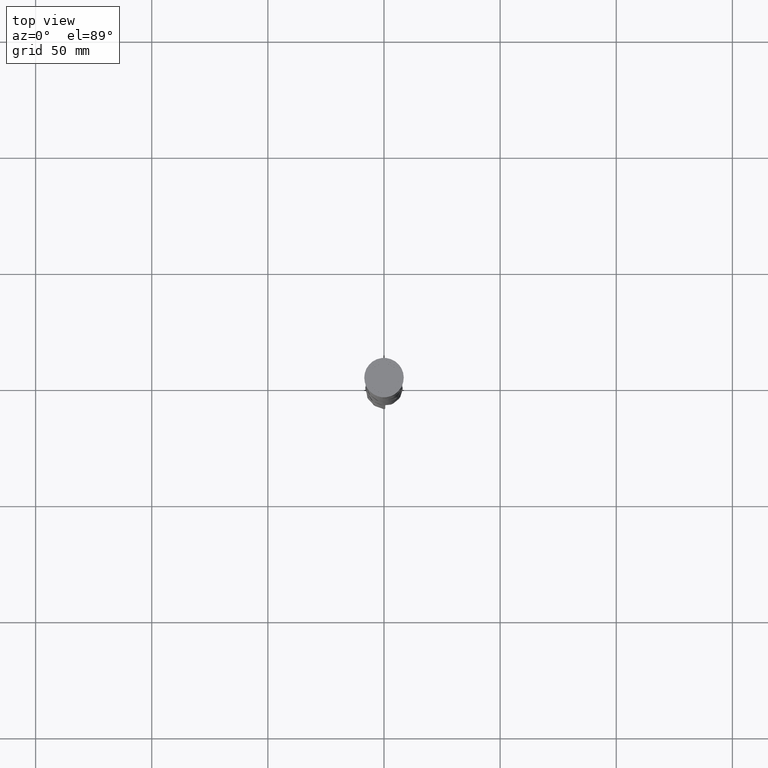
[diagram: clean part render]
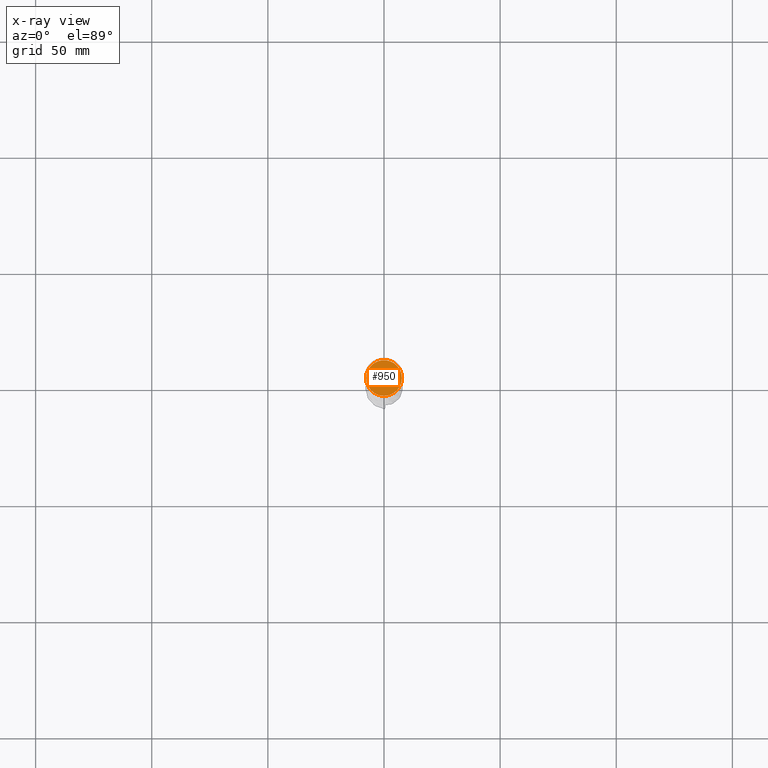
[diagram: x-ray — body ghosted, one internal face saturated and labeled with its STEP entity id]
A machine part, top view, then the same camera in x-ray: the body is ghosted and one INTERNAL B-rep face — a face not visible from any outside direction — is saturated and labeled: STEP entity #950.
In plain terms, the highlighted planar face has unit normal (0, 0, -1).
Its self-contained STEP definition (entity closure, byte-faithful):
#681 = CIRCLE ( 'NONE', #3809, 7.700000000000001954 ) ;
#836 = CARTESIAN_POINT ( 'NONE',  ( 0.000000000000000000, 0.000000000000000000, -12.00000000000000000 ) ) ;
#950 = ADVANCED_FACE ( 'NONE', ( #1639 ), #2623, .F. ) ;
#1072 = CIRCLE ( 'NONE', #2279, 7.700000000000001954 ) ;
#1192 = DIRECTION ( 'NONE',  ( -1.000000000000000000, 0.000000000000000000, 0.000000000000000000 ) ) ;
#1483 = VERTEX_POINT ( 'NONE', #4101 ) ;
#1601 = AXIS2_PLACEMENT_3D ( 'NONE', #2640, #3909, #1621 ) ;
#1621 = DIRECTION ( 'NONE',  ( -1.000000000000000000, 0.000000000000000000, -0.000000000000000000 ) ) ;
#1639 = FACE_OUTER_BOUND ( 'NONE', #3141, .T. ) ;
#1755 = ORIENTED_EDGE ( 'NONE', *, *, #2425, .T. ) ;
#1910 = VERTEX_POINT ( 'NONE', #3384 ) ;
#2114 = DIRECTION ( 'NONE',  ( -1.000000000000000000, 0.000000000000000000, 0.000000000000000000 ) ) ;
#2147 = EDGE_CURVE ( 'NONE', #1910, #1483, #1072, .T. ) ;
#2279 = AXIS2_PLACEMENT_3D ( 'NONE', #2777, #3180, #1192 ) ;
#2425 = EDGE_CURVE ( 'NONE', #1483, #1910, #681, .T. ) ;
#2623 = PLANE ( 'NONE',  #1601 ) ;
#2640 = CARTESIAN_POINT ( 'NONE',  ( 0.000000000000000000, 0.000000000000000000, -12.00000000000000000 ) ) ;
#2777 = CARTESIAN_POINT ( 'NONE',  ( 0.000000000000000000, 0.000000000000000000, -12.00000000000000000 ) ) ;
#3070 = DIRECTION ( 'NONE',  ( -0.000000000000000000, -0.000000000000000000, 1.000000000000000000 ) ) ;
#3141 = EDGE_LOOP ( 'NONE', ( #1755, #3356 ) ) ;
#3180 = DIRECTION ( 'NONE',  ( -0.000000000000000000, -0.000000000000000000, 1.000000000000000000 ) ) ;
#3356 = ORIENTED_EDGE ( 'NONE', *, *, #2147, .T. ) ;
#3384 = CARTESIAN_POINT ( 'NONE',  ( 7.700000000000001954, 9.613477373306725302E-16, -12.00000000000000000 ) ) ;
#3809 = AXIS2_PLACEMENT_3D ( 'NONE', #836, #3070, #2114 ) ;
#3909 = DIRECTION ( 'NONE',  ( 0.000000000000000000, 0.000000000000000000, -1.000000000000000000 ) ) ;
#4101 = CARTESIAN_POINT ( 'NONE',  ( -7.700000000000001954, 0.000000000000000000, -12.00000000000000000 ) ) ;